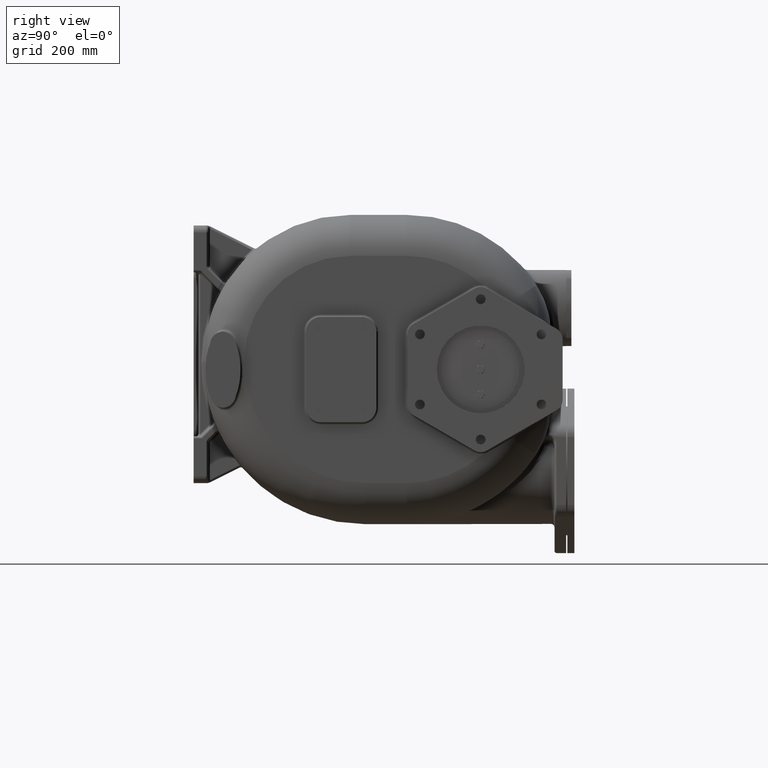
[diagram: clean part render]
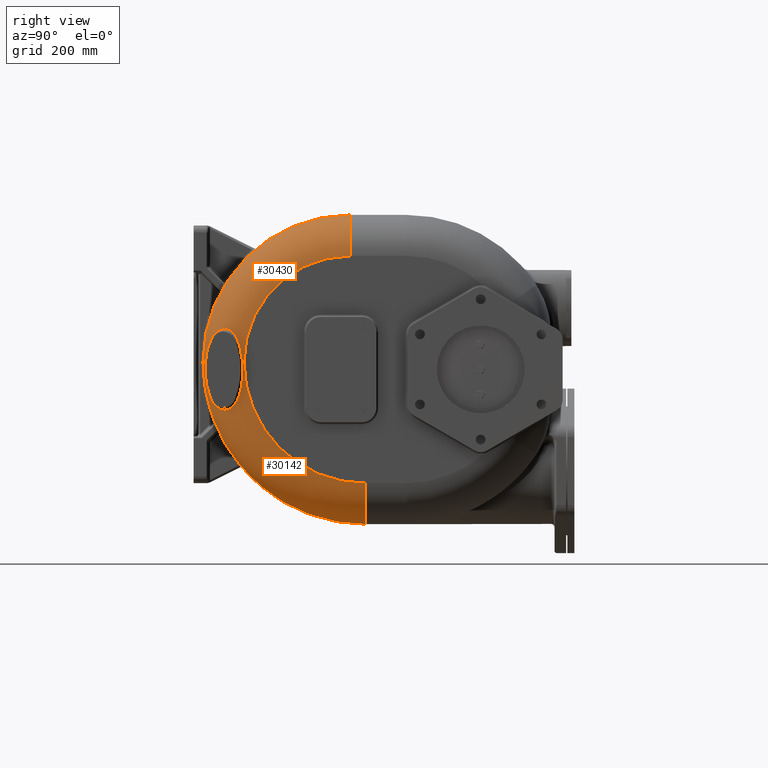
[diagram: same view with one multi-face feature highlighted, each face labeled with its STEP entity id]
A machine part, right view. The highlighted faces form ONE feature: a constant-radius fillet chain: 2 tangent blend faces with common blend radius 70 mm. The faces share edges in the B-rep.
Their STEP definitions:
[1] entity #30430 (Torus):
#2227=CARTESIAN_POINT('',(1.2E2,2.67E2,-1.3E1));
#2228=DIRECTION('',(1.E0,0.E0,0.E0));
#2229=DIRECTION('',(0.E0,0.E0,1.E0));
#2230=AXIS2_PLACEMENT_3D('',#2227,#2228,#2229);
#4851=CARTESIAN_POINT('',(1.436302674868E2,2.010910185387E1,-1.3E1));
#5023=CARTESIAN_POINT('',(1.899597127545E2,8.362542818423E1,-1.3E1));
#5025=CARTESIAN_POINT('',(1.2E2,8.6E1,-1.3E1));
#5026=DIRECTION('',(0.E0,0.E0,-1.E0));
#5027=DIRECTION('',(1.E0,0.E0,0.E0));
#5028=AXIS2_PLACEMENT_3D('',#5025,#5026,#5027);
#5030=CARTESIAN_POINT('',(1.2E2,8.6E1,-1.3E1));
#5031=DIRECTION('',(0.E0,0.E0,-1.E0));
#5032=DIRECTION('',(3.375752498110E-1,-9.412985449447E-1,0.E0));
#5033=AXIS2_PLACEMENT_3D('',#5030,#5031,#5032);
#5045=CARTESIAN_POINT('',(1.899597127545E2,8.362542818423E1,-1.3E1));
#5046=CARTESIAN_POINT('',(1.899581593396E2,8.357965880943E1,-1.240249249773E1));
#5047=CARTESIAN_POINT('',(1.899545603078E2,8.348207304996E1,-1.121363541831E1));
#5048=CARTESIAN_POINT('',(1.899474694037E2,8.331756571455E1,-9.446858134940E0));
#5049=CARTESIAN_POINT('',(1.899384418405E2,8.313536801167E1,-7.699084105350E0));
#5050=CARTESIAN_POINT('',(1.899271959105E2,8.293584767830E1,-5.971583062592E0));
#5051=CARTESIAN_POINT('',(1.899134195545E2,8.271937115620E1,-4.265957050764E0));
#5052=CARTESIAN_POINT('',(1.898967815996E2,8.248640504441E1,-2.583614289303E0));
#5053=CARTESIAN_POINT('',(1.898769377463E2,8.223744713610E1,
-9.264163760729E-1));
#5054=CARTESIAN_POINT('',(1.898535419707E2,8.197308266533E1,7.035766332419E-1));
#5055=CARTESIAN_POINT('',(1.898262593704E2,8.169403180296E1,2.304371883068E0));
#5056=CARTESIAN_POINT('',(1.897947501900E2,8.140085589615E1,3.874615852805E0));
#5057=CARTESIAN_POINT('',(1.897586928613E2,8.109421099983E1,5.413033013435E0));
#5058=CARTESIAN_POINT('',(1.897177896990E2,8.077480458408E1,6.918407908325E0));
#5059=CARTESIAN_POINT('',(1.896717579863E2,8.044325564225E1,8.389707220407E0));
#5060=CARTESIAN_POINT('',(1.896203576658E2,8.010033399387E1,9.825898529180E0));
#5061=CARTESIAN_POINT('',(1.895633747079E2,7.974674673447E1,1.122619096546E1));
#5062=CARTESIAN_POINT('',(1.895006180449E2,7.938313173011E1,1.259005189003E1));
#5063=CARTESIAN_POINT('',(1.894319496857E2,7.901026693509E1,1.391694349490E1));
#5064=CARTESIAN_POINT('',(1.893572490972E2,7.862878568573E1,1.520659298769E1));
#5065=CARTESIAN_POINT('',(1.892764300869E2,7.823932985716E1,1.645885356995E1));
#5066=CARTESIAN_POINT('',(1.891894559045E2,7.784262258799E1,1.767362981815E1));
#5067=CARTESIAN_POINT('',(1.890962658330E2,7.743909039680E1,1.885145865611E1));
#5068=CARTESIAN_POINT('',(1.889968244721E2,7.702918297091E1,1.999295140279E1));
#5069=CARTESIAN_POINT('',(1.888911225437E2,7.661336072704E1,2.109872733745E1));
#5070=CARTESIAN_POINT('',(1.887791757818E2,7.619206698012E1,2.216928120929E1));
#5071=CARTESIAN_POINT('',(1.886610238374E2,7.576576696654E1,2.320522498680E1));
#5072=CARTESIAN_POINT('',(1.885367328641E2,7.533492621623E1,2.420707865603E1));
#5073=CARTESIAN_POINT('',(1.884063928385E2,7.489999236363E1,2.517525410051E1));
#5074=CARTESIAN_POINT('',(1.882701229468E2,7.446145803119E1,2.611025225530E1));
#5075=CARTESIAN_POINT('',(1.881280337102E2,7.401970417682E1,2.701270004112E1));
#5076=CARTESIAN_POINT('',(1.879802263994E2,7.357502551876E1,2.788331693786E1));
#5077=CARTESIAN_POINT('',(1.878268153315E2,7.312773547026E1,2.872287829946E1));
#5078=CARTESIAN_POINT('',(1.876679129546E2,7.267808891031E1,2.953211599780E1));
#5079=CARTESIAN_POINT('',(1.875036267333E2,7.222629865597E1,3.031179173542E1));
#5080=CARTESIAN_POINT('',(1.873340649520E2,7.177257285513E1,3.106272040764E1));
#5081=CARTESIAN_POINT('',(1.871593246162E2,7.131705644517E1,3.178567364541E1));
#5082=CARTESIAN_POINT('',(1.869794870587E2,7.085984660124E1,3.248146402128E1));
#5083=CARTESIAN_POINT('',(1.867946280400E2,7.040103153792E1,3.315091942978E1));
#5084=CARTESIAN_POINT('',(1.866048147118E2,6.994066213101E1,3.379479141199E1));
#5085=CARTESIAN_POINT('',(1.864100884831E2,6.947873178172E1,3.441387389540E1));
#5086=CARTESIAN_POINT('',(1.862104852643E2,6.901523397090E1,3.500894019269E1));
#5087=CARTESIAN_POINT('',(1.860060270626E2,6.855012600353E1,3.558069874262E1));
#5088=CARTESIAN_POINT('',(1.857967010763E2,6.808329815203E1,3.612988919738E1));
#5089=CARTESIAN_POINT('',(1.855825002469E2,6.761467293332E1,3.665718572656E1));
#5090=CARTESIAN_POINT('',(1.853633990347E2,6.714413534987E1,3.716320738293E1));
#5091=CARTESIAN_POINT('',(1.851393370364E2,6.667151031484E1,3.764857924874E1));
#5092=CARTESIAN_POINT('',(1.849102449378E2,6.619662840335E1,3.811389671380E1));
#5093=CARTESIAN_POINT('',(1.846760054143E2,6.571922949719E1,3.855973958734E1));
#5094=CARTESIAN_POINT('',(1.844365101732E2,6.523909611619E1,3.898657156946E1));
#5095=CARTESIAN_POINT('',(1.841920591317E2,6.475683565441E1,3.939416407098E1));
#5096=CARTESIAN_POINT('',(1.839429472450E2,6.427299809636E1,3.978237319551E1));
#5097=CARTESIAN_POINT('',(1.836894539628E2,6.378807838867E1,4.015118078043E1));
#5098=CARTESIAN_POINT('',(1.834317691440E2,6.330238907223E1,4.050079019697E1));
#5099=CARTESIAN_POINT('',(1.831701383188E2,6.281631733220E1,4.083131393460E1));
#5100=CARTESIAN_POINT('',(1.829045486976E2,6.232977139930E1,4.114324414545E1));
#5101=CARTESIAN_POINT('',(1.826347959812E2,6.184233194098E1,4.143723781326E1));
#5102=CARTESIAN_POINT('',(1.823606466047E2,6.135354034151E1,4.171381229883E1));
#5103=CARTESIAN_POINT('',(1.820819940102E2,6.086320329104E1,4.197333040579E1));
#5104=CARTESIAN_POINT('',(1.817987475619E2,6.037116515298E1,4.221608078495E1));
#5105=CARTESIAN_POINT('',(1.815107820658E2,5.987720929281E1,4.244228119797E1));
#5106=CARTESIAN_POINT('',(1.812179663135E2,5.938114220994E1,4.265217605537E1));
#5107=CARTESIAN_POINT('',(1.809201446106E2,5.888273166399E1,4.284593548077E1));
#5108=CARTESIAN_POINT('',(1.806171594309E2,5.838175028718E1,4.302365337014E1));
#5109=CARTESIAN_POINT('',(1.803089047807E2,5.787808596050E1,4.318541820144E1));
#5110=CARTESIAN_POINT('',(1.799952645554E2,5.737160176039E1,4.333122824989E1));
#5111=CARTESIAN_POINT('',(1.796760916720E2,5.686212294279E1,4.346106869763E1));
#5112=CARTESIAN_POINT('',(1.793512006545E2,5.634943659163E1,4.357494110120E1));
#5113=CARTESIAN_POINT('',(1.790203843825E2,5.583329171309E1,4.367273805881E1));
#5114=CARTESIAN_POINT('',(1.786835690711E2,5.531366689481E1,4.375431411995E1));
#5115=CARTESIAN_POINT('',(1.783407743015E2,5.479068799755E1,4.381950033648E1));
#5116=CARTESIAN_POINT('',(1.779920164E2,5.426445817413E1,4.386807118904E1));
#5117=CARTESIAN_POINT('',(1.776373188254E2,5.373510329494E1,4.389985100940E1));
#5118=CARTESIAN_POINT('',(1.773969381385E2,5.338023940620E1,4.390971426650E1));
#5119=CARTESIAN_POINT('',(1.772757637609E2,5.320232045469E1,4.391177733563E1));
#5121=CARTESIAN_POINT('',(1.772757637609E2,5.320232045469E1,4.391177733563E1));
#5122=CARTESIAN_POINT('',(1.771535369736E2,5.302285783837E1,4.391385809205E1));
#5123=CARTESIAN_POINT('',(1.769068706291E2,5.266265634190E1,4.391227926780E1));
#5124=CARTESIAN_POINT('',(1.765302228402E2,5.211863760233E1,4.389238961728E1));
#5125=CARTESIAN_POINT('',(1.761468501596E2,5.157089667859E1,4.385464052362E1));
#5126=CARTESIAN_POINT('',(1.757567150279E2,5.101948787491E1,4.379866651933E1));
#5127=CARTESIAN_POINT('',(1.753597602082E2,5.046444603379E1,4.372411388123E1));
#5128=CARTESIAN_POINT('',(1.749559628148E2,4.990584583295E1,4.363057773735E1));
#5129=CARTESIAN_POINT('',(1.745453063354E2,4.934377187657E1,4.351764503103E1));
#5130=CARTESIAN_POINT('',(1.741277534014E2,4.877828536619E1,4.338489562368E1));
#5131=CARTESIAN_POINT('',(1.737033115681E2,4.820950174099E1,4.323187765898E1));
#5132=CARTESIAN_POINT('',(1.732719685327E2,4.763751180456E1,4.305812732791E1));
#5133=CARTESIAN_POINT('',(1.728336838237E2,4.706237091088E1,4.286314847964E1));
#5134=CARTESIAN_POINT('',(1.723884688168E2,4.648419886399E1,4.264642586538E1));
#5135=CARTESIAN_POINT('',(1.719363091580E2,4.590308445003E1,4.240742068544E1));
#5136=CARTESIAN_POINT('',(1.714771861846E2,4.531911287524E1,4.214556481485E1));
#5137=CARTESIAN_POINT('',(1.710111328120E2,4.473243400693E1,4.186028807291E1));
#5138=CARTESIAN_POINT('',(1.705381273714E2,4.414312943499E1,4.155096159987E1));
#5139=CARTESIAN_POINT('',(1.700581545098E2,4.355129340887E1,4.121693246736E1));
#5140=CARTESIAN_POINT('',(1.695712461564E2,4.295708002314E1,4.085754911712E1));
#5141=CARTESIAN_POINT('',(1.690773723895E2,4.236056771795E1,4.047207179494E1));
#5142=CARTESIAN_POINT('',(1.685765284284E2,4.176187546621E1,4.005976106326E1));
#5143=CARTESIAN_POINT('',(1.680687450435E2,4.116116703053E1,3.961986729964E1));
#5144=CARTESIAN_POINT('',(1.675539855783E2,4.055852676642E1,3.915152384674E1));
#5145=CARTESIAN_POINT('',(1.670322535345E2,3.995410316392E1,3.865389498054E1));
#5146=CARTESIAN_POINT('',(1.665035738022E2,3.934807111497E1,3.812610622874E1));
#5147=CARTESIAN_POINT('',(1.659679156360E2,3.874054491316E1,3.756715887583E1));
#5148=CARTESIAN_POINT('',(1.654252960365E2,3.813171790965E1,3.697611749557E1));
#5149=CARTESIAN_POINT('',(1.648757429422E2,3.752179490849E1,3.635196788713E1));
#5150=CARTESIAN_POINT('',(1.643192497230E2,3.691095036043E1,3.569358652605E1));
#5151=CARTESIAN_POINT('',(1.637558558529E2,3.629944235839E1,3.499994166530E1));
#5152=CARTESIAN_POINT('',(1.631856093681E2,3.568753335041E1,3.426987788142E1));
#5153=CARTESIAN_POINT('',(1.626085459433E2,3.507548809149E1,3.350216731442E1));
#5154=CARTESIAN_POINT('',(1.620247352392E2,3.446364801110E1,3.269568818670E1));
#5155=CARTESIAN_POINT('',(1.614342833395E2,3.385238132520E1,3.184917595399E1));
#5156=CARTESIAN_POINT('',(1.608373039065E2,3.324209037059E1,3.096136226121E1));
#5157=CARTESIAN_POINT('',(1.602339308339E2,3.263324240005E1,3.003108745721E1));
#5158=CARTESIAN_POINT('',(1.596243417533E2,3.202633108618E1,2.905700621352E1));
#5159=CARTESIAN_POINT('',(1.590087147338E2,3.142189278124E1,2.803783224643E1));
#5160=CARTESIAN_POINT('',(1.583872532205E2,3.082052876016E1,2.697236370838E1));
#5161=CARTESIAN_POINT('',(1.577603147023E2,3.022296812657E1,2.585937409020E1));
#5162=CARTESIAN_POINT('',(1.571282105612E2,2.962995458723E1,2.469775557294E1));
#5163=CARTESIAN_POINT('',(1.564913348963E2,2.904232931857E1,2.348650950373E1));
#5164=CARTESIAN_POINT('',(1.558502941316E2,2.846110057256E1,2.222475103259E1));
#5165=CARTESIAN_POINT('',(1.552055902808E2,2.788724632498E1,2.091174584835E1));
#5166=CARTESIAN_POINT('',(1.545578459888E2,2.732184099561E1,1.954683809577E1));
#5167=CARTESIAN_POINT('',(1.539077960246E2,2.676603963866E1,1.812945403576E1));
#5168=CARTESIAN_POINT('',(1.532560528137E2,2.622095017807E1,1.665914732019E1));
#5169=CARTESIAN_POINT('',(1.526035106996E2,2.568787633301E1,1.513578330778E1));
#5170=CARTESIAN_POINT('',(1.519511175813E2,2.516815661344E1,1.355943755677E1));
#5171=CARTESIAN_POINT('',(1.512997039939E2,2.466306542850E1,1.193029437938E1));
#5172=CARTESIAN_POINT('',(1.506506074974E2,2.417418859960E1,1.024934490732E1));
#5173=CARTESIAN_POINT('',(1.500050705422E2,2.370301471307E1,8.517745346344E0));
#5174=CARTESIAN_POINT('',(1.493643170317E2,2.325098806353E1,6.736902745979E0));
#5175=CARTESIAN_POINT('',(1.487300593760E2,2.281976964313E1,4.909106255259E0));
#5176=CARTESIAN_POINT('',(1.481037216722E2,2.241076898004E1,3.036534690429E0));
#5177=CARTESIAN_POINT('',(1.474870637672E2,2.202551006891E1,1.122404756182E0));
#5178=CARTESIAN_POINT('',(1.468824813580E2,2.166571747251E1,
-8.283216237381E-1));
#5179=CARTESIAN_POINT('',(1.462919337704E2,2.133270093942E1,-2.810867364392E0));
#5180=CARTESIAN_POINT('',(1.457176474430E2,2.102770150019E1,-4.819781882623E0));
#5181=CARTESIAN_POINT('',(1.451619097185E2,2.075176057616E1,-6.849237753158E0));
#5182=CARTESIAN_POINT('',(1.446266845643E2,2.050555616018E1,-8.893121957604E0));
#5183=CARTESIAN_POINT('',(1.441139440480E2,2.028954600294E1,-1.094601045340E1));
#5184=CARTESIAN_POINT('',(1.437887536606E2,2.016593932244E1,-1.231502159292E1));
#5185=CARTESIAN_POINT('',(1.436302674868E2,2.010910185387E1,-1.3E1));
#5187=CARTESIAN_POINT('',(1.2E2,2.67E2,1.68E2));
#5188=DIRECTION('',(0.E0,-1.E0,0.E0));
#5189=DIRECTION('',(1.E0,0.E0,0.E0));
#5190=AXIS2_PLACEMENT_3D('',#5187,#5188,#5189);
#5631=CARTESIAN_POINT('',(1.9E2,2.67E2,-1.3E1));
#5632=DIRECTION('',(1.E0,0.E0,0.E0));
#5633=DIRECTION('',(0.E0,0.E0,1.E0));
#5634=AXIS2_PLACEMENT_3D('',#5631,#5632,#5633);
#22564=CARTESIAN_POINT('',(1.2E2,2.67E2,2.38E2));
#22566=VERTEX_POINT('',#22564);
#22621=CARTESIAN_POINT('',(1.9E2,8.6E1,-1.3E1));
#22622=VERTEX_POINT('',#22621);
#22623=CARTESIAN_POINT('',(1.2E2,1.6E1,-1.3E1));
#22624=VERTEX_POINT('',#22623);
#22625=CARTESIAN_POINT('',(1.9E2,2.67E2,1.68E2));
#22626=VERTEX_POINT('',#22625);
#22631=VERTEX_POINT('',#4851);
#22634=VERTEX_POINT('',#5023);
#22636=VERTEX_POINT('',#5119);
#30413=CARTESIAN_POINT('',(1.2E2,2.67E2,-1.3E1));
#30414=DIRECTION('',(-1.E0,0.E0,0.E0));
#30415=DIRECTION('',(0.E0,7.567555942500E-3,9.999713656386E-1));
#30416=AXIS2_PLACEMENT_3D('',#30413,#30414,#30415);
#30417=TOROIDAL_SURFACE('',#30416,1.81E2,7.E1);
#30419=ORIENTED_EDGE('',*,*,#30418,.T.);
#30420=ORIENTED_EDGE('',*,*,#30403,.T.);
#30421=ORIENTED_EDGE('',*,*,#30138,.T.);
#30422=ORIENTED_EDGE('',*,*,#27145,.F.);
#30424=ORIENTED_EDGE('',*,*,#30423,.F.);
#30426=ORIENTED_EDGE('',*,*,#30425,.T.);
#30427=ORIENTED_EDGE('',*,*,#30131,.T.);
#30428=EDGE_LOOP('',(#30419,#30420,#30421,#30422,#30424,#30426,#30427));
#30429=FACE_OUTER_BOUND('',#30428,.F.);
#30430=ADVANCED_FACE('',(#30429),#30417,.T.);
#2231=CIRCLE('',#2230,2.51E2);
#5029=CIRCLE('',#5028,7.E1);
#5034=CIRCLE('',#5033,7.E1);
#5120=B_SPLINE_CURVE_WITH_KNOTS('',3,(#5045,#5046,#5047,#5048,#5049,#5050,#5051,
#5052,#5053,#5054,#5055,#5056,#5057,#5058,#5059,#5060,#5061,#5062,#5063,#5064,
#5065,#5066,#5067,#5068,#5069,#5070,#5071,#5072,#5073,#5074,#5075,#5076,#5077,
#5078,#5079,#5080,#5081,#5082,#5083,#5084,#5085,#5086,#5087,#5088,#5089,#5090,
#5091,#5092,#5093,#5094,#5095,#5096,#5097,#5098,#5099,#5100,#5101,#5102,#5103,
#5104,#5105,#5106,#5107,#5108,#5109,#5110,#5111,#5112,#5113,#5114,#5115,#5116,
#5117,#5118,#5119),.UNSPECIFIED.,.F.,.F.,(4,1,1,1,1,1,1,1,1,1,1,1,1,1,1,1,1,1,1,
1,1,1,1,1,1,1,1,1,1,1,1,1,1,1,1,1,1,1,1,1,1,1,1,1,1,1,1,1,1,1,1,1,1,1,1,1,1,1,1,
1,1,1,1,1,1,1,1,1,1,1,1,1,4),(0.E0,1.388888888889E-2,2.777777777778E-2,
4.166666666667E-2,5.555555555556E-2,6.944444444444E-2,8.333333333333E-2,
9.722222222222E-2,1.111111111111E-1,1.25E-1,1.388888888889E-1,1.527777777778E-1,
1.666666666667E-1,1.805555555556E-1,1.944444444444E-1,2.083333333333E-1,
2.222222222222E-1,2.361111111111E-1,2.5E-1,2.638888888889E-1,2.777777777778E-1,
2.916666666667E-1,3.055555555556E-1,3.194444444444E-1,3.333333333333E-1,
3.472222222222E-1,3.611111111111E-1,3.75E-1,3.888888888889E-1,4.027777777778E-1,
4.166666666667E-1,4.305555555556E-1,4.444444444444E-1,4.583333333333E-1,
4.722222222222E-1,4.861111111111E-1,5.E-1,5.138888888889E-1,5.277777777778E-1,
5.416666666667E-1,5.555555555556E-1,5.694444444444E-1,5.833333333333E-1,
5.972222222222E-1,6.111111111111E-1,6.25E-1,6.388888888889E-1,6.527777777778E-1,
6.666666666667E-1,6.805555555556E-1,6.944444444444E-1,7.083333333333E-1,
7.222222222222E-1,7.361111111111E-1,7.5E-1,7.638888888889E-1,7.777777777778E-1,
7.916666666667E-1,8.055555555556E-1,8.194444444444E-1,8.333333333333E-1,
8.472222222222E-1,8.611111111111E-1,8.75E-1,8.888888888889E-1,9.027777777778E-1,
9.166666666667E-1,9.305555555556E-1,9.444444444444E-1,9.583333333333E-1,
9.722222222222E-1,9.861111111111E-1,1.E0),.UNSPECIFIED.);
#5186=B_SPLINE_CURVE_WITH_KNOTS('',3,(#5121,#5122,#5123,#5124,#5125,#5126,#5127,
#5128,#5129,#5130,#5131,#5132,#5133,#5134,#5135,#5136,#5137,#5138,#5139,#5140,
#5141,#5142,#5143,#5144,#5145,#5146,#5147,#5148,#5149,#5150,#5151,#5152,#5153,
#5154,#5155,#5156,#5157,#5158,#5159,#5160,#5161,#5162,#5163,#5164,#5165,#5166,
#5167,#5168,#5169,#5170,#5171,#5172,#5173,#5174,#5175,#5176,#5177,#5178,#5179,
#5180,#5181,#5182,#5183,#5184,#5185),.UNSPECIFIED.,.F.,.F.,(4,1,1,1,1,1,1,1,1,1,
1,1,1,1,1,1,1,1,1,1,1,1,1,1,1,1,1,1,1,1,1,1,1,1,1,1,1,1,1,1,1,1,1,1,1,1,1,1,1,1,
1,1,1,1,1,1,1,1,1,1,1,1,4),(0.E0,1.612903225806E-2,3.225806451613E-2,
4.838709677419E-2,6.451612903226E-2,8.064516129032E-2,9.677419354839E-2,
1.129032258065E-1,1.290322580645E-1,1.451612903226E-1,1.612903225806E-1,
1.774193548387E-1,1.935483870968E-1,2.096774193548E-1,2.258064516129E-1,
2.419354838710E-1,2.580645161290E-1,2.741935483871E-1,2.903225806452E-1,
3.064516129032E-1,3.225806451613E-1,3.387096774194E-1,3.548387096774E-1,
3.709677419355E-1,3.870967741935E-1,4.032258064516E-1,4.193548387097E-1,
4.354838709677E-1,4.516129032258E-1,4.677419354839E-1,4.838709677419E-1,5.E-1,
5.161290322581E-1,5.322580645161E-1,5.483870967742E-1,5.645161290323E-1,
5.806451612903E-1,5.967741935484E-1,6.129032258065E-1,6.290322580645E-1,
6.451612903226E-1,6.612903225806E-1,6.774193548387E-1,6.935483870968E-1,
7.096774193548E-1,7.258064516129E-1,7.419354838710E-1,7.580645161290E-1,
7.741935483871E-1,7.903225806452E-1,8.064516129032E-1,8.225806451613E-1,
8.387096774194E-1,8.548387096774E-1,8.709677419355E-1,8.870967741935E-1,
9.032258064516E-1,9.193548387097E-1,9.354838709677E-1,9.516129032258E-1,
9.677419354839E-1,9.838709677419E-1,1.E0),.UNSPECIFIED.);
#5191=CIRCLE('',#5190,7.E1);
#5635=CIRCLE('',#5634,1.81E2);
#27145=EDGE_CURVE('',#22566,#22624,#2231,.T.);
#30131=EDGE_CURVE('',#22622,#22634,#5029,.T.);
#30138=EDGE_CURVE('',#22631,#22624,#5034,.T.);
#30403=EDGE_CURVE('',#22636,#22631,#5186,.T.);
#30418=EDGE_CURVE('',#22634,#22636,#5120,.T.);
#30423=EDGE_CURVE('',#22626,#22566,#5191,.T.);
#30425=EDGE_CURVE('',#22626,#22622,#5635,.T.);
[2] entity #30142 (Torus):
#2684=CARTESIAN_POINT('',(1.2E2,2.93E2,-1.3E1));
#2685=DIRECTION('',(1.E0,0.E0,0.E0));
#2686=DIRECTION('',(0.E0,-1.E0,0.E0));
#2687=AXIS2_PLACEMENT_3D('',#2684,#2685,#2686);
#4851=CARTESIAN_POINT('',(1.436302674868E2,2.010910185387E1,-1.3E1));
#4852=CARTESIAN_POINT('',(1.434774850535E2,2.005430937251E1,-1.366220013647E1));
#4853=CARTESIAN_POINT('',(1.431825362065E2,1.995454968476E1,-1.498000676323E1));
#4854=CARTESIAN_POINT('',(1.427718428452E2,1.983316179506E1,-1.693759887206E1));
#4855=CARTESIAN_POINT('',(1.423935799865E2,1.973907631960E1,-1.887212816799E1));
#4856=CARTESIAN_POINT('',(1.420480140452E2,1.967116820238E1,-2.078093430659E1));
#4857=CARTESIAN_POINT('',(1.417354892376E2,1.962833029918E1,-2.266116148232E1));
#4858=CARTESIAN_POINT('',(1.414560493564E2,1.960933981310E1,-2.450988102760E1));
#4859=CARTESIAN_POINT('',(1.412095348435E2,1.961295038040E1,-2.632515984223E1));
#4860=CARTESIAN_POINT('',(1.409955728968E2,1.963792320956E1,-2.810591690151E1));
#4861=CARTESIAN_POINT('',(1.408135763286E2,1.968298093355E1,-2.985079668782E1));
#4862=CARTESIAN_POINT('',(1.406627491059E2,1.974699251748E1,-3.156095532692E1));
#4863=CARTESIAN_POINT('',(1.405423228502E2,1.982896504002E1,-3.323785880910E1));
#4864=CARTESIAN_POINT('',(1.404514990176E2,1.992800933776E1,-3.488312068189E1));
#4865=CARTESIAN_POINT('',(1.403893914088E2,2.004336117405E1,-3.649894776881E1));
#4866=CARTESIAN_POINT('',(1.403553411225E2,2.017444379586E1,-3.808764115690E1));
#4867=CARTESIAN_POINT('',(1.403487197975E2,2.032076303327E1,-3.965118588585E1));
#4868=CARTESIAN_POINT('',(1.403689258024E2,2.048189644560E1,-4.119130408119E1));
#4869=CARTESIAN_POINT('',(1.404155267991E2,2.065756839790E1,-4.270984505326E1));
#4870=CARTESIAN_POINT('',(1.404880140612E2,2.084755266888E1,-4.420858582751E1));
#4871=CARTESIAN_POINT('',(1.405860575922E2,2.105176072759E1,-4.568935961185E1));
#4872=CARTESIAN_POINT('',(1.407094408666E2,2.127020102824E1,-4.715387870620E1));
#4873=CARTESIAN_POINT('',(1.408578275532E2,2.150285293162E1,-4.860337527423E1));
#4874=CARTESIAN_POINT('',(1.410311048675E2,2.174984325472E1,-5.003921088386E1));
#4875=CARTESIAN_POINT('',(1.412290961446E2,2.201128674224E1,-5.146235185554E1));
#4876=CARTESIAN_POINT('',(1.414515955290E2,2.228730171473E1,-5.287349863229E1));
#4877=CARTESIAN_POINT('',(1.416985613134E2,2.257811802714E1,-5.427341460296E1));
#4878=CARTESIAN_POINT('',(1.419697538119E2,2.288385255599E1,-5.566224239431E1));
#4879=CARTESIAN_POINT('',(1.422649904259E2,2.320467344718E1,-5.704011873126E1));
#4880=CARTESIAN_POINT('',(1.425840888301E2,2.354075408442E1,-5.840699369502E1));
#4881=CARTESIAN_POINT('',(1.429266641897E2,2.389213276425E1,-5.976227508438E1));
#4882=CARTESIAN_POINT('',(1.432923959277E2,2.425891060931E1,-6.110551274163E1));
#4883=CARTESIAN_POINT('',(1.436808171377E2,2.464107772312E1,-6.243583439287E1));
#4884=CARTESIAN_POINT('',(1.440913300373E2,2.503853459744E1,-6.375212962854E1));
#4885=CARTESIAN_POINT('',(1.445233290144E2,2.545119373283E1,-6.505338282864E1));
#4886=CARTESIAN_POINT('',(1.449760297220E2,2.587881128043E1,-6.633815952179E1));
#4887=CARTESIAN_POINT('',(1.454485727397E2,2.632110111494E1,-6.760506358313E1));
#4888=CARTESIAN_POINT('',(1.459400257101E2,2.677772171144E1,-6.885268240407E1));
#4889=CARTESIAN_POINT('',(1.464493537354E2,2.724822311748E1,-7.007942798012E1));
#4890=CARTESIAN_POINT('',(1.469754384533E2,2.773210757139E1,-7.128382846454E1));
#4891=CARTESIAN_POINT('',(1.475171253484E2,2.822882256818E1,-7.246441996229E1));
#4892=CARTESIAN_POINT('',(1.480732247831E2,2.873776462988E1,-7.361977868036E1));
#4893=CARTESIAN_POINT('',(1.486424525525E2,2.925826208642E1,-7.474858136281E1));
#4894=CARTESIAN_POINT('',(1.492236009880E2,2.978965841172E1,-7.584963861356E1));
#4895=CARTESIAN_POINT('',(1.498154181508E2,3.033124979881E1,-7.692185502938E1));
#4896=CARTESIAN_POINT('',(1.504166175639E2,3.088229332147E1,-7.796426119160E1));
#4897=CARTESIAN_POINT('',(1.510260606654E2,3.144211730815E1,-7.897608532821E1));
#4898=CARTESIAN_POINT('',(1.516425300229E2,3.200998211983E1,-7.995662812854E1));
#4899=CARTESIAN_POINT('',(1.522648840287E2,3.258518253080E1,-8.090536606344E1));
#4900=CARTESIAN_POINT('',(1.528921038113E2,3.316707642804E1,-8.182193052124E1));
#4901=CARTESIAN_POINT('',(1.535231017265E2,3.375496275686E1,-8.270602491109E1));
#4902=CARTESIAN_POINT('',(1.541569416224E2,3.434823036648E1,-8.355752502583E1));
#4903=CARTESIAN_POINT('',(1.547927438420E2,3.494629158608E1,-8.437639275728E1));
#4904=CARTESIAN_POINT('',(1.554296080860E2,3.554853796984E1,-8.516267803704E1));
#4905=CARTESIAN_POINT('',(1.560667917329E2,3.615445656001E1,-8.591654095740E1));
#4906=CARTESIAN_POINT('',(1.567035634E2,3.676353298330E1,-8.663819553894E1));
#4907=CARTESIAN_POINT('',(1.573392173551E2,3.737526762586E1,-8.732793718380E1));
#4908=CARTESIAN_POINT('',(1.579731633683E2,3.798922643833E1,-8.798610163125E1));
#4909=CARTESIAN_POINT('',(1.586048167459E2,3.860497705131E1,-8.861307629853E1));
#4910=CARTESIAN_POINT('',(1.592336314502E2,3.922210936668E1,-8.920929427999E1));
#4911=CARTESIAN_POINT('',(1.598591312617E2,3.984024685438E1,-8.977518791346E1));
#4912=CARTESIAN_POINT('',(1.604808559240E2,4.045902749877E1,-9.031124219601E1));
#4913=CARTESIAN_POINT('',(1.610983733216E2,4.107809867245E1,-9.081794686399E1));
#4914=CARTESIAN_POINT('',(1.617112937749E2,4.169712485870E1,-9.129578174706E1));
#4915=CARTESIAN_POINT('',(1.623192528798E2,4.231579432318E1,-9.174527339677E1));
#4916=CARTESIAN_POINT('',(1.629218948091E2,4.293378321734E1,-9.216692017398E1));
#4917=CARTESIAN_POINT('',(1.635188958478E2,4.355078310876E1,-9.256122041189E1));
#4918=CARTESIAN_POINT('',(1.641099597727E2,4.416650961675E1,-9.292870486295E1));
#4919=CARTESIAN_POINT('',(1.646947924708E2,4.478065934829E1,-9.326986724422E1));
#4920=CARTESIAN_POINT('',(1.652731346525E2,4.539295418955E1,-9.358521566449E1));
#4921=CARTESIAN_POINT('',(1.658447485281E2,4.600313057963E1,-9.387526780821E1));
#4922=CARTESIAN_POINT('',(1.664093755867E2,4.661088369059E1,-9.414049906933E1));
#4923=CARTESIAN_POINT('',(1.669667938533E2,4.721593949899E1,-9.438140718207E1));
#4924=CARTESIAN_POINT('',(1.675168109958E2,4.781804415433E1,-9.459849044408E1));
#4925=CARTESIAN_POINT('',(1.680592591064E2,4.841695698371E1,-9.479223758398E1));
#4926=CARTESIAN_POINT('',(1.685940185990E2,4.901248386920E1,-9.496314885163E1));
#4927=CARTESIAN_POINT('',(1.691209329544E2,4.960437758898E1,-9.511168953345E1));
#4928=CARTESIAN_POINT('',(1.696398067770E2,5.019233691300E1,-9.523831154712E1));
#4929=CARTESIAN_POINT('',(1.701504801106E2,5.077608942831E1,-9.534347723230E1));
#4930=CARTESIAN_POINT('',(1.706528929816E2,5.135546664387E1,-9.542765954043E1));
#4931=CARTESIAN_POINT('',(1.711470510565E2,5.193037230188E1,-9.549133076923E1));
#4932=CARTESIAN_POINT('',(1.716329888008E2,5.250073603613E1,-9.553492987584E1));
#4933=CARTESIAN_POINT('',(1.721107231778E2,5.306646680016E1,-9.555888241510E1));
#4934=CARTESIAN_POINT('',(1.724237839111E2,5.344050499518E1,-9.556202232890E1));
#4935=CARTESIAN_POINT('',(1.725789568150E2,5.362672378307E1,-9.556044758948E1));
#4937=CARTESIAN_POINT('',(1.725789568150E2,5.362672378307E1,-9.556044758948E1));
#4938=CARTESIAN_POINT('',(1.727350139299E2,5.381400456774E1,-9.555886349032E1));
#4939=CARTESIAN_POINT('',(1.730446722469E2,5.418731818376E1,-9.554939675599E1));
#4940=CARTESIAN_POINT('',(1.735018132117E2,5.474349742809E1,-9.551660725324E1));
#4941=CARTESIAN_POINT('',(1.739515268109E2,5.529569494591E1,-9.546550867055E1));
#4942=CARTESIAN_POINT('',(1.743937862965E2,5.584377782499E1,-9.539636006013E1));
#4943=CARTESIAN_POINT('',(1.748285745199E2,5.638763666371E1,-9.530945669196E1));
#4944=CARTESIAN_POINT('',(1.752558841488E2,5.692715750627E1,-9.520504673180E1));
#4945=CARTESIAN_POINT('',(1.756757755286E2,5.746230972161E1,-9.508335276056E1));
#4946=CARTESIAN_POINT('',(1.760884359438E2,5.799324212627E1,-9.494457605348E1));
#4947=CARTESIAN_POINT('',(1.764940445325E2,5.852008186013E1,-9.478882634824E1));
#4948=CARTESIAN_POINT('',(1.768927622035E2,5.904294761147E1,-9.461620682175E1));
#4949=CARTESIAN_POINT('',(1.772847254014E2,5.956194100346E1,-9.442682164268E1));
#4950=CARTESIAN_POINT('',(1.776700685394E2,6.007714562496E1,-9.422068414382E1));
#4951=CARTESIAN_POINT('',(1.780489585343E2,6.058871194890E1,-9.399780283957E1));
#4952=CARTESIAN_POINT('',(1.784215753429E2,6.109681769564E1,-9.375813775507E1));
#4953=CARTESIAN_POINT('',(1.787880777373E2,6.160160142933E1,-9.350156245817E1));
#4954=CARTESIAN_POINT('',(1.791486434146E2,6.210325956627E1,-9.322795620793E1));
#4955=CARTESIAN_POINT('',(1.795034377932E2,6.260197425415E1,-9.293713350050E1));
#4956=CARTESIAN_POINT('',(1.798526017492E2,6.309788854100E1,-9.262883836702E1));
#4957=CARTESIAN_POINT('',(1.801963231266E2,6.359124756215E1,-9.230278921470E1));
#4958=CARTESIAN_POINT('',(1.805347596996E2,6.408225185796E1,-9.195862520124E1));
#4959=CARTESIAN_POINT('',(1.808680422643E2,6.457106703072E1,-9.159593068811E1));
#4960=CARTESIAN_POINT('',(1.811963166926E2,6.505791523135E1,-9.121427223013E1));
#4961=CARTESIAN_POINT('',(1.815196698463E2,6.554292537453E1,-9.081316543099E1));
#4962=CARTESIAN_POINT('',(1.818382272164E2,6.602629488697E1,-9.039201272465E1));
#4963=CARTESIAN_POINT('',(1.821522199922E2,6.650841623172E1,-8.995003105512E1));
#4964=CARTESIAN_POINT('',(1.824618521766E2,6.698964649979E1,-8.948628570358E1));
#4965=CARTESIAN_POINT('',(1.827670024875E2,6.746985908723E1,-8.900024628012E1));
#4966=CARTESIAN_POINT('',(1.830672650614E2,6.794848018076E1,-8.849189814029E1));
#4967=CARTESIAN_POINT('',(1.833622988575E2,6.842499915872E1,-8.796116139715E1));
#4968=CARTESIAN_POINT('',(1.836517617436E2,6.889889200780E1,-8.740807159432E1));
#4969=CARTESIAN_POINT('',(1.839353409692E2,6.936966653050E1,-8.683271632691E1));
#4970=CARTESIAN_POINT('',(1.842127115066E2,6.983676972728E1,-8.623528977257E1));
#4971=CARTESIAN_POINT('',(1.844840742461E2,7.030053568280E1,-8.561490618725E1));
#4972=CARTESIAN_POINT('',(1.847496074721E2,7.076129111354E1,-8.497057074342E1));
#4973=CARTESIAN_POINT('',(1.850094128822E2,7.121924157942E1,-8.430129503497E1));
#4974=CARTESIAN_POINT('',(1.852634922388E2,7.167443923669E1,-8.360625328288E1));
#4975=CARTESIAN_POINT('',(1.855118150402E2,7.212689042691E1,-8.288463918553E1));
#4976=CARTESIAN_POINT('',(1.857543339274E2,7.257656624395E1,-8.213558923808E1));
#4977=CARTESIAN_POINT('',(1.859910257997E2,7.302349329395E1,-8.135808974340E1));
#4978=CARTESIAN_POINT('',(1.862218258944E2,7.346763495344E1,-8.055118848731E1));
#4979=CARTESIAN_POINT('',(1.864466444004E2,7.390889506211E1,-7.971389844435E1));
#4980=CARTESIAN_POINT('',(1.866653785050E2,7.434715298024E1,-7.884521341571E1));
#4981=CARTESIAN_POINT('',(1.868779042184E2,7.478225502135E1,-7.794419112414E1));
#4982=CARTESIAN_POINT('',(1.870840759417E2,7.521397276900E1,-7.700986568928E1));
#4983=CARTESIAN_POINT('',(1.872837404649E2,7.564204981646E1,-7.604128900352E1));
#4984=CARTESIAN_POINT('',(1.874767408712E2,7.606622108088E1,-7.503757905163E1));
#4985=CARTESIAN_POINT('',(1.876628935371E2,7.648610377101E1,-7.399789623548E1));
#4986=CARTESIAN_POINT('',(1.878420207092E2,7.690130052635E1,-7.292146111973E1));
#4987=CARTESIAN_POINT('',(1.880139573829E2,7.731142171129E1,-7.180756180990E1));
#4988=CARTESIAN_POINT('',(1.881785134371E2,7.771592113234E1,-7.065561427347E1));
#4989=CARTESIAN_POINT('',(1.883355288235E2,7.811428050712E1,-6.946510073636E1));
#4990=CARTESIAN_POINT('',(1.884848658402E2,7.850598121651E1,-6.823559489974E1));
#4991=CARTESIAN_POINT('',(1.886263739616E2,7.889033364932E1,-6.696687938788E1));
#4992=CARTESIAN_POINT('',(1.887599573953E2,7.926672987462E1,-6.565877998683E1));
#4993=CARTESIAN_POINT('',(1.888855463541E2,7.963452965930E1,-6.431126848743E1));
#4994=CARTESIAN_POINT('',(1.890030807167E2,7.999294841519E1,-6.292455993754E1));
#4995=CARTESIAN_POINT('',(1.891125708480E2,8.034132733879E1,-6.149888084092E1));
#4996=CARTESIAN_POINT('',(1.892140533832E2,8.067893148970E1,-6.003467911532E1));
#4997=CARTESIAN_POINT('',(1.893075983181E2,8.100494481433E1,-5.853262322726E1));
#4998=CARTESIAN_POINT('',(1.893933480928E2,8.131869513400E1,-5.699337997522E1));
#4999=CARTESIAN_POINT('',(1.894714713803E2,8.161940242989E1,-5.541788546274E1));
#5000=CARTESIAN_POINT('',(1.895421852645E2,8.190628955869E1,-5.380721592270E1));
#5001=CARTESIAN_POINT('',(1.896057672113E2,8.217870881695E1,-5.216246068246E1));
#5002=CARTESIAN_POINT('',(1.896625163282E2,8.243589011299E1,-5.048503360539E1));
#5003=CARTESIAN_POINT('',(1.897127797879E2,8.267714439532E1,-4.877641240225E1));
#5004=CARTESIAN_POINT('',(1.897569443447E2,8.290187385957E1,-4.703811698054E1));
#5005=CARTESIAN_POINT('',(1.897954145340E2,8.310940650193E1,-4.527179489779E1));
#5006=CARTESIAN_POINT('',(1.898286249935E2,8.329919609505E1,-4.347907374354E1));
#5007=CARTESIAN_POINT('',(1.898570198577E2,8.347071746132E1,-4.166179228230E1));
#5008=CARTESIAN_POINT('',(1.898810429383E2,8.362340535943E1,-3.982211289E1));
#5009=CARTESIAN_POINT('',(1.899011446719E2,8.375684305786E1,-3.796223362599E1));
#5010=CARTESIAN_POINT('',(1.899177660161E2,8.387063576649E1,-3.608400586239E1));
#5011=CARTESIAN_POINT('',(1.899313288404E2,8.396441737142E1,-3.418906898469E1));
#5012=CARTESIAN_POINT('',(1.899422292330E2,8.403791631493E1,-3.227911280355E1));
#5013=CARTESIAN_POINT('',(1.899508266109E2,8.409087143218E1,-3.035592554259E1));
#5014=CARTESIAN_POINT('',(1.899574412007E2,8.412310221532E1,-2.842116518467E1));
#5015=CARTESIAN_POINT('',(1.899623438743E2,8.413446352929E1,-2.647706810013E1));
#5016=CARTESIAN_POINT('',(1.899657453138E2,8.412473380818E1,-2.452914042585E1));
#5017=CARTESIAN_POINT('',(1.899678139783E2,8.409400193597E1,-2.258282638464E1));
#5018=CARTESIAN_POINT('',(1.899686619196E2,8.404237188600E1,-2.064244547391E1));
#5019=CARTESIAN_POINT('',(1.899683379483E2,8.396981962437E1,-1.871065333154E1));
#5020=CARTESIAN_POINT('',(1.899668341842E2,8.387652273391E1,-1.679054190466E1));
#5021=CARTESIAN_POINT('',(1.899640837075E2,8.376268493163E1,-1.488463106395E1));
#5022=CARTESIAN_POINT('',(1.899613408175E2,8.367340558825E1,-1.362643533314E1));
#5023=CARTESIAN_POINT('',(1.899597127545E2,8.362542818423E1,-1.3E1));
#5025=CARTESIAN_POINT('',(1.2E2,8.6E1,-1.3E1));
#5026=DIRECTION('',(0.E0,0.E0,-1.E0));
#5027=DIRECTION('',(1.E0,0.E0,0.E0));
#5028=AXIS2_PLACEMENT_3D('',#5025,#5026,#5027);
#5030=CARTESIAN_POINT('',(1.2E2,8.6E1,-1.3E1));
#5031=DIRECTION('',(0.E0,0.E0,-1.E0));
#5032=DIRECTION('',(3.375752498110E-1,-9.412985449447E-1,0.E0));
#5033=AXIS2_PLACEMENT_3D('',#5030,#5031,#5032);
#5626=CARTESIAN_POINT('',(1.9E2,2.93E2,-1.3E1));
#5627=DIRECTION('',(1.E0,0.E0,0.E0));
#5628=DIRECTION('',(0.E0,-1.E0,0.E0));
#5629=AXIS2_PLACEMENT_3D('',#5626,#5627,#5628);
#7680=CARTESIAN_POINT('',(1.2E2,2.93E2,-2.2E2));
#7681=DIRECTION('',(0.E0,1.E0,0.E0));
#7682=DIRECTION('',(1.E0,0.E0,0.E0));
#7683=AXIS2_PLACEMENT_3D('',#7680,#7681,#7682);
#22498=CARTESIAN_POINT('',(1.2E2,2.93E2,-2.9E2));
#22500=VERTEX_POINT('',#22498);
#22617=CARTESIAN_POINT('',(1.9E2,2.93E2,-2.2E2));
#22619=VERTEX_POINT('',#22617);
#22621=CARTESIAN_POINT('',(1.9E2,8.6E1,-1.3E1));
#22622=VERTEX_POINT('',#22621);
#22623=CARTESIAN_POINT('',(1.2E2,1.6E1,-1.3E1));
#22624=VERTEX_POINT('',#22623);
#22631=VERTEX_POINT('',#4851);
#22632=VERTEX_POINT('',#4935);
#22634=VERTEX_POINT('',#5023);
#30122=CARTESIAN_POINT('',(1.2E2,2.93E2,-1.3E1));
#30123=DIRECTION('',(-1.E0,0.E0,0.E0));
#30124=DIRECTION('',(0.E0,-9.999764887468E-1,6.857255542660E-3));
#30125=AXIS2_PLACEMENT_3D('',#30122,#30123,#30124);
#30126=TOROIDAL_SURFACE('',#30125,2.07E2,7.E1);
#30128=ORIENTED_EDGE('',*,*,#30127,.T.);
#30130=ORIENTED_EDGE('',*,*,#30129,.T.);
#30132=ORIENTED_EDGE('',*,*,#30131,.F.);
#30134=ORIENTED_EDGE('',*,*,#30133,.T.);
#30136=ORIENTED_EDGE('',*,*,#30135,.T.);
#30137=ORIENTED_EDGE('',*,*,#27203,.F.);
#30139=ORIENTED_EDGE('',*,*,#30138,.F.);
#30140=EDGE_LOOP('',(#30128,#30130,#30132,#30134,#30136,#30137,#30139));
#30141=FACE_OUTER_BOUND('',#30140,.F.);
#30142=ADVANCED_FACE('',(#30141),#30126,.T.);
#2688=CIRCLE('',#2687,2.77E2);
#4936=B_SPLINE_CURVE_WITH_KNOTS('',3,(#4851,#4852,#4853,#4854,#4855,#4856,#4857,
#4858,#4859,#4860,#4861,#4862,#4863,#4864,#4865,#4866,#4867,#4868,#4869,#4870,
#4871,#4872,#4873,#4874,#4875,#4876,#4877,#4878,#4879,#4880,#4881,#4882,#4883,
#4884,#4885,#4886,#4887,#4888,#4889,#4890,#4891,#4892,#4893,#4894,#4895,#4896,
#4897,#4898,#4899,#4900,#4901,#4902,#4903,#4904,#4905,#4906,#4907,#4908,#4909,
#4910,#4911,#4912,#4913,#4914,#4915,#4916,#4917,#4918,#4919,#4920,#4921,#4922,
#4923,#4924,#4925,#4926,#4927,#4928,#4929,#4930,#4931,#4932,#4933,#4934,#4935),
.UNSPECIFIED.,.F.,.F.,(4,1,1,1,1,1,1,1,1,1,1,1,1,1,1,1,1,1,1,1,1,1,1,1,1,1,1,1,
1,1,1,1,1,1,1,1,1,1,1,1,1,1,1,1,1,1,1,1,1,1,1,1,1,1,1,1,1,1,1,1,1,1,1,1,1,1,1,1,
1,1,1,1,1,1,1,1,1,1,1,1,1,1,4),(0.E0,1.219512195122E-2,2.439024390244E-2,
3.658536585366E-2,4.878048780488E-2,6.097560975610E-2,7.317073170732E-2,
8.536585365854E-2,9.756097560976E-2,1.097560975610E-1,1.219512195122E-1,
1.341463414634E-1,1.463414634146E-1,1.585365853659E-1,1.707317073171E-1,
1.829268292683E-1,1.951219512195E-1,2.073170731707E-1,2.195121951220E-1,
2.317073170732E-1,2.439024390244E-1,2.560975609756E-1,2.682926829268E-1,
2.804878048780E-1,2.926829268293E-1,3.048780487805E-1,3.170731707317E-1,
3.292682926829E-1,3.414634146341E-1,3.536585365854E-1,3.658536585366E-1,
3.780487804878E-1,3.902439024390E-1,4.024390243902E-1,4.146341463415E-1,
4.268292682927E-1,4.390243902439E-1,4.512195121951E-1,4.634146341463E-1,
4.756097560976E-1,4.878048780488E-1,5.E-1,5.121951219512E-1,5.243902439024E-1,
5.365853658537E-1,5.487804878049E-1,5.609756097561E-1,5.731707317073E-1,
5.853658536585E-1,5.975609756098E-1,6.097560975610E-1,6.219512195122E-1,
6.341463414634E-1,6.463414634146E-1,6.585365853659E-1,6.707317073171E-1,
6.829268292683E-1,6.951219512195E-1,7.073170731707E-1,7.195121951220E-1,
7.317073170732E-1,7.439024390244E-1,7.560975609756E-1,7.682926829268E-1,
7.804878048780E-1,7.926829268293E-1,8.048780487805E-1,8.170731707317E-1,
8.292682926829E-1,8.414634146341E-1,8.536585365854E-1,8.658536585366E-1,
8.780487804878E-1,8.902439024390E-1,9.024390243902E-1,9.146341463415E-1,
9.268292682927E-1,9.390243902439E-1,9.512195121951E-1,9.634146341463E-1,
9.756097560976E-1,9.878048780488E-1,1.E0),.UNSPECIFIED.);
#5024=B_SPLINE_CURVE_WITH_KNOTS('',3,(#4937,#4938,#4939,#4940,#4941,#4942,#4943,
#4944,#4945,#4946,#4947,#4948,#4949,#4950,#4951,#4952,#4953,#4954,#4955,#4956,
#4957,#4958,#4959,#4960,#4961,#4962,#4963,#4964,#4965,#4966,#4967,#4968,#4969,
#4970,#4971,#4972,#4973,#4974,#4975,#4976,#4977,#4978,#4979,#4980,#4981,#4982,
#4983,#4984,#4985,#4986,#4987,#4988,#4989,#4990,#4991,#4992,#4993,#4994,#4995,
#4996,#4997,#4998,#4999,#5000,#5001,#5002,#5003,#5004,#5005,#5006,#5007,#5008,
#5009,#5010,#5011,#5012,#5013,#5014,#5015,#5016,#5017,#5018,#5019,#5020,#5021,
#5022,#5023),.UNSPECIFIED.,.F.,.F.,(4,1,1,1,1,1,1,1,1,1,1,1,1,1,1,1,1,1,1,1,1,1,
1,1,1,1,1,1,1,1,1,1,1,1,1,1,1,1,1,1,1,1,1,1,1,1,1,1,1,1,1,1,1,1,1,1,1,1,1,1,1,1,
1,1,1,1,1,1,1,1,1,1,1,1,1,1,1,1,1,1,1,1,1,1,4),(0.E0,1.190476190476E-2,
2.380952380952E-2,3.571428571429E-2,4.761904761905E-2,5.952380952381E-2,
7.142857142857E-2,8.333333333333E-2,9.523809523810E-2,1.071428571429E-1,
1.190476190476E-1,1.309523809524E-1,1.428571428571E-1,1.547619047619E-1,
1.666666666667E-1,1.785714285714E-1,1.904761904762E-1,2.023809523810E-1,
2.142857142857E-1,2.261904761905E-1,2.380952380952E-1,2.5E-1,2.619047619048E-1,
2.738095238095E-1,2.857142857143E-1,2.976190476190E-1,3.095238095238E-1,
3.214285714286E-1,3.333333333333E-1,3.452380952381E-1,3.571428571429E-1,
3.690476190476E-1,3.809523809524E-1,3.928571428571E-1,4.047619047619E-1,
4.166666666667E-1,4.285714285714E-1,4.404761904762E-1,4.523809523810E-1,
4.642857142857E-1,4.761904761905E-1,4.880952380952E-1,5.E-1,5.119047619048E-1,
5.238095238095E-1,5.357142857143E-1,5.476190476190E-1,5.595238095238E-1,
5.714285714286E-1,5.833333333333E-1,5.952380952381E-1,6.071428571429E-1,
6.190476190476E-1,6.309523809524E-1,6.428571428571E-1,6.547619047619E-1,
6.666666666667E-1,6.785714285714E-1,6.904761904762E-1,7.023809523810E-1,
7.142857142857E-1,7.261904761905E-1,7.380952380952E-1,7.5E-1,7.619047619048E-1,
7.738095238095E-1,7.857142857143E-1,7.976190476190E-1,8.095238095238E-1,
8.214285714286E-1,8.333333333333E-1,8.452380952381E-1,8.571428571429E-1,
8.690476190476E-1,8.809523809524E-1,8.928571428571E-1,9.047619047619E-1,
9.166666666667E-1,9.285714285714E-1,9.404761904762E-1,9.523809523810E-1,
9.642857142857E-1,9.761904761905E-1,9.880952380952E-1,1.E0),.UNSPECIFIED.);
#5029=CIRCLE('',#5028,7.E1);
#5034=CIRCLE('',#5033,7.E1);
#5630=CIRCLE('',#5629,2.07E2);
#7684=CIRCLE('',#7683,7.E1);
#27203=EDGE_CURVE('',#22624,#22500,#2688,.T.);
#30127=EDGE_CURVE('',#22631,#22632,#4936,.T.);
#30129=EDGE_CURVE('',#22632,#22634,#5024,.T.);
#30131=EDGE_CURVE('',#22622,#22634,#5029,.T.);
#30133=EDGE_CURVE('',#22622,#22619,#5630,.T.);
#30135=EDGE_CURVE('',#22619,#22500,#7684,.T.);
#30138=EDGE_CURVE('',#22631,#22624,#5034,.T.);